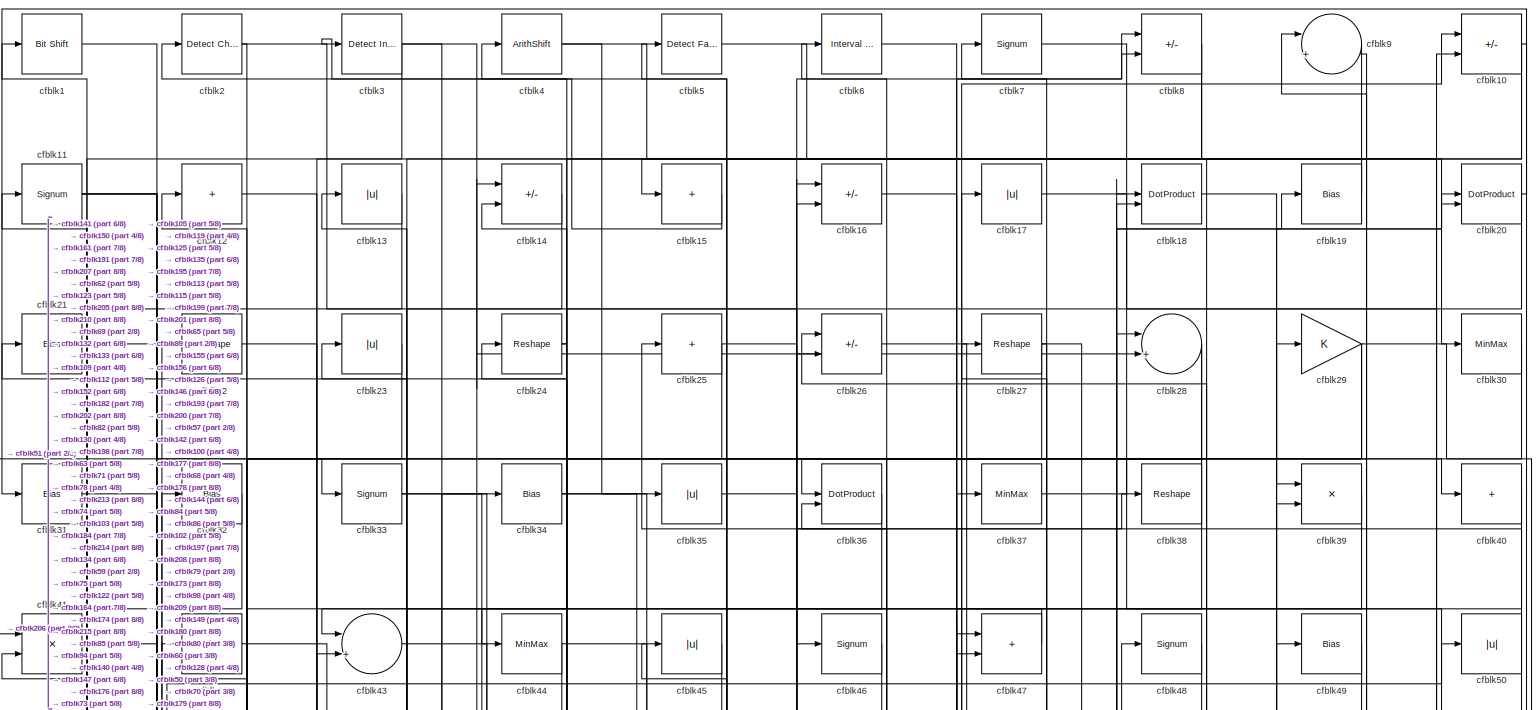
[diagram: root canvas - part 1/8, full width, top band]
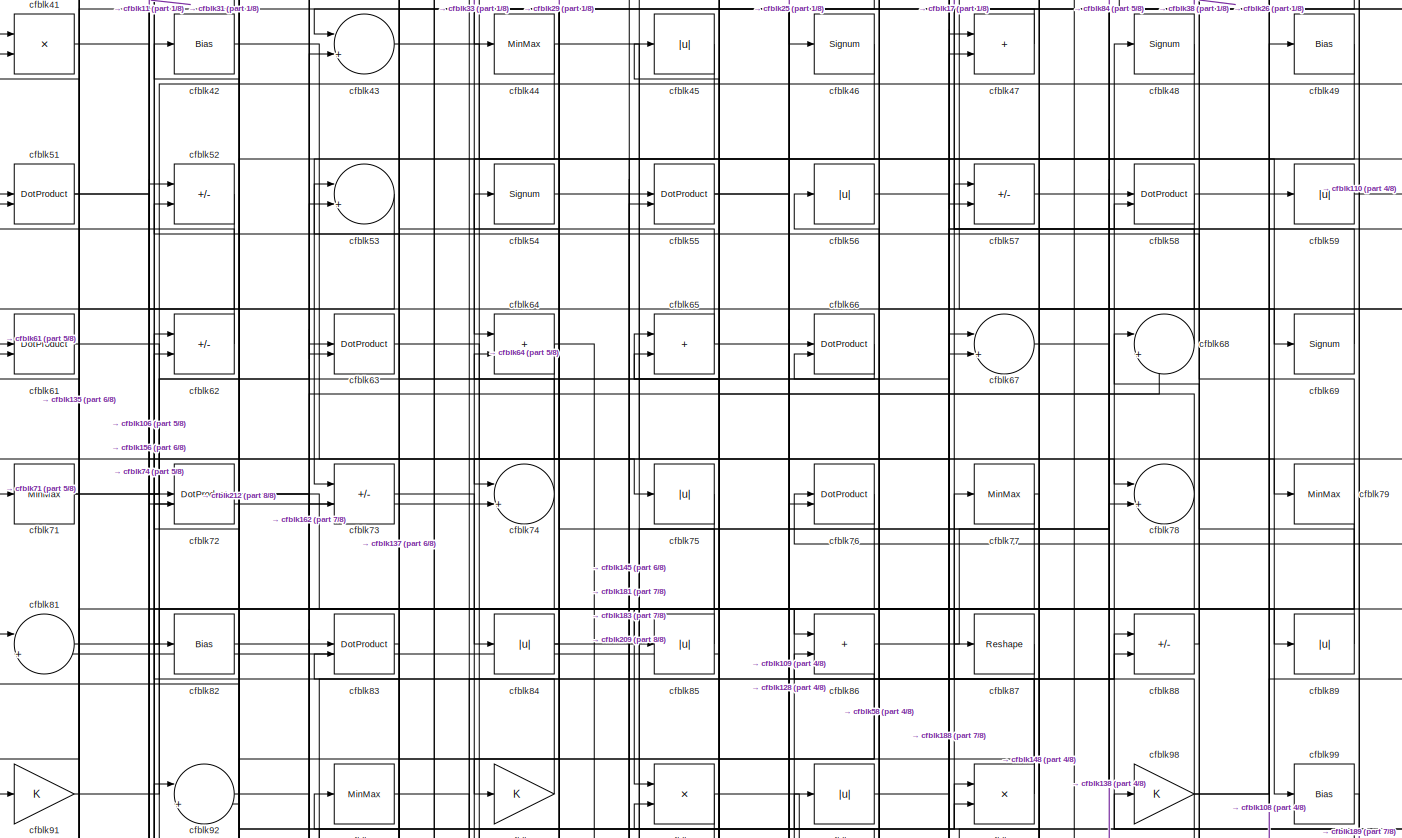
[diagram: root canvas - part 2/8, full width, top band]
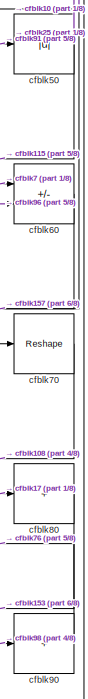
[diagram: root canvas - part 3/8, top right region]
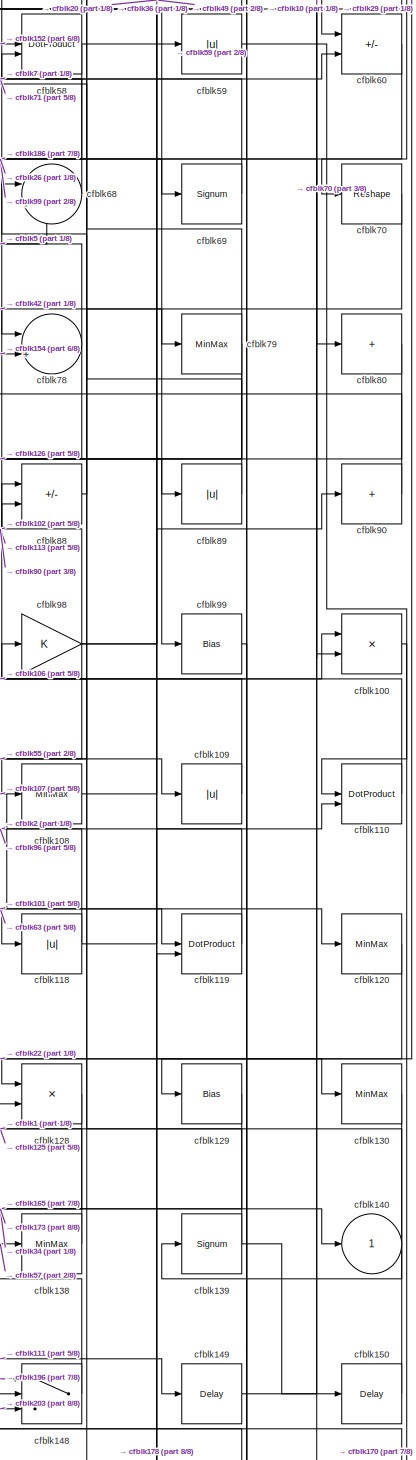
[diagram: root canvas - part 4/8, middle right region]
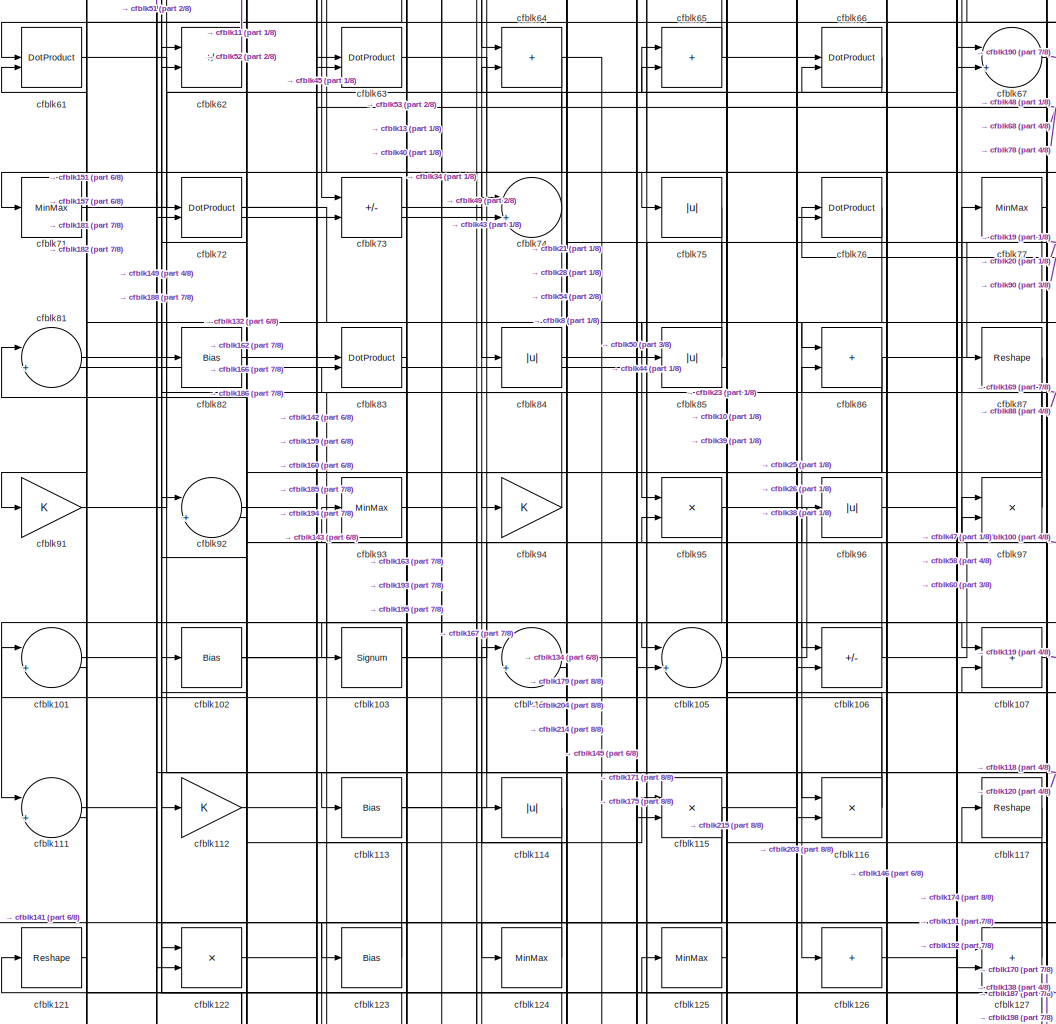
[diagram: root canvas - part 5/8, central region]
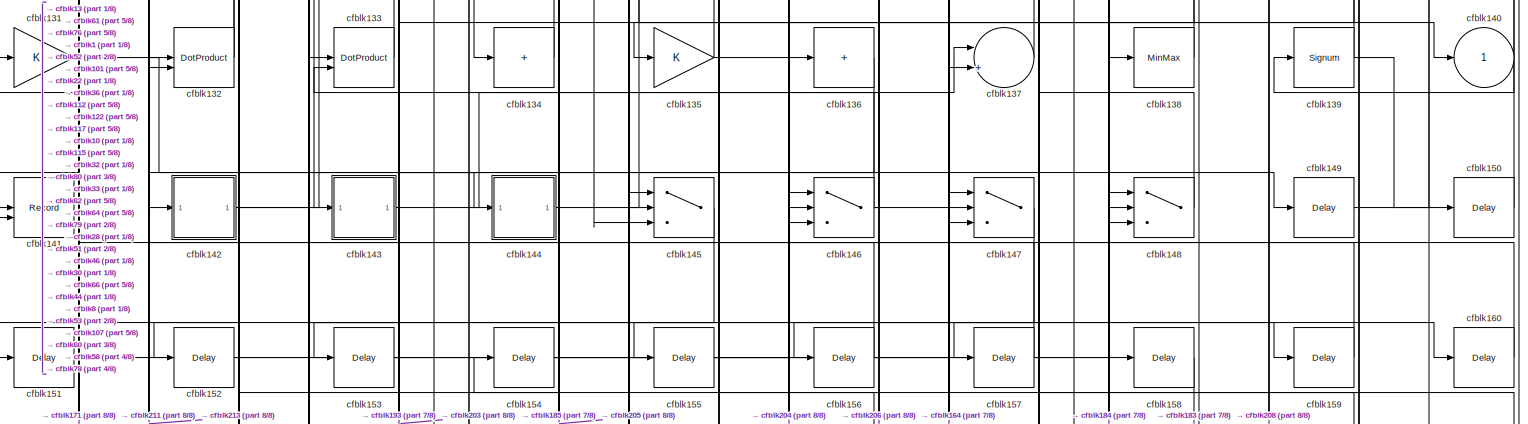
[diagram: root canvas - part 6/8, full width, middle band]
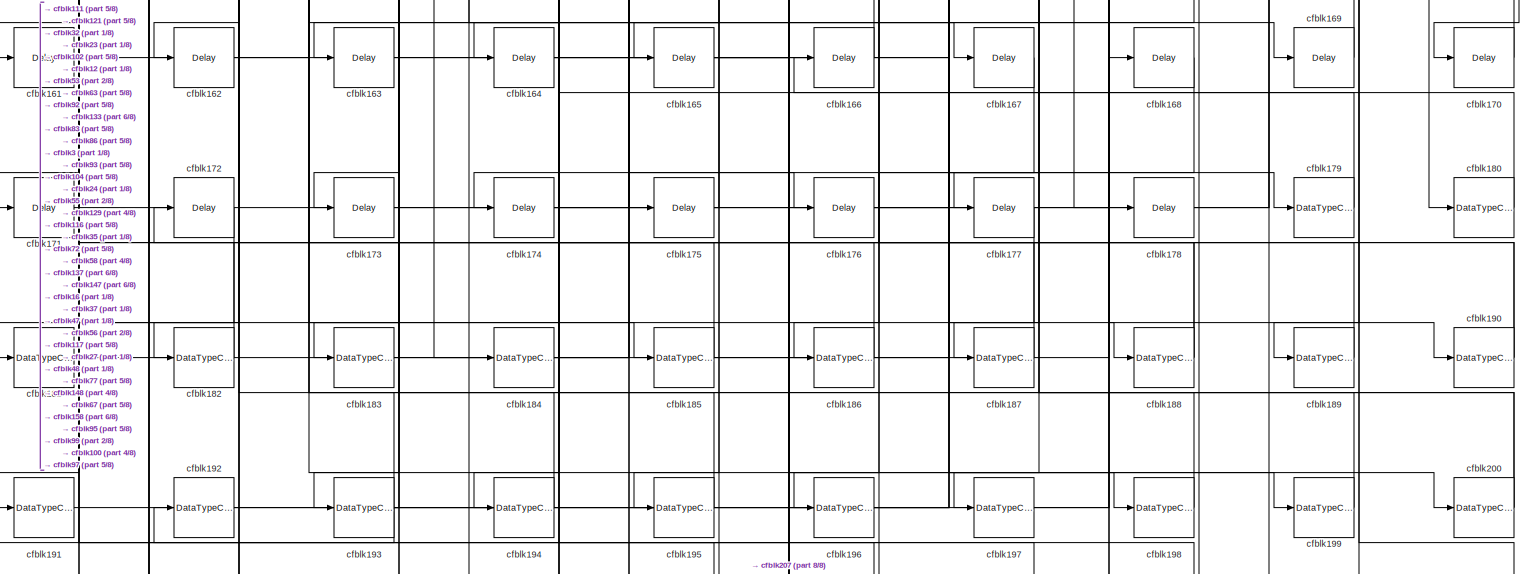
[diagram: root canvas - part 7/8, full width, bottom band]
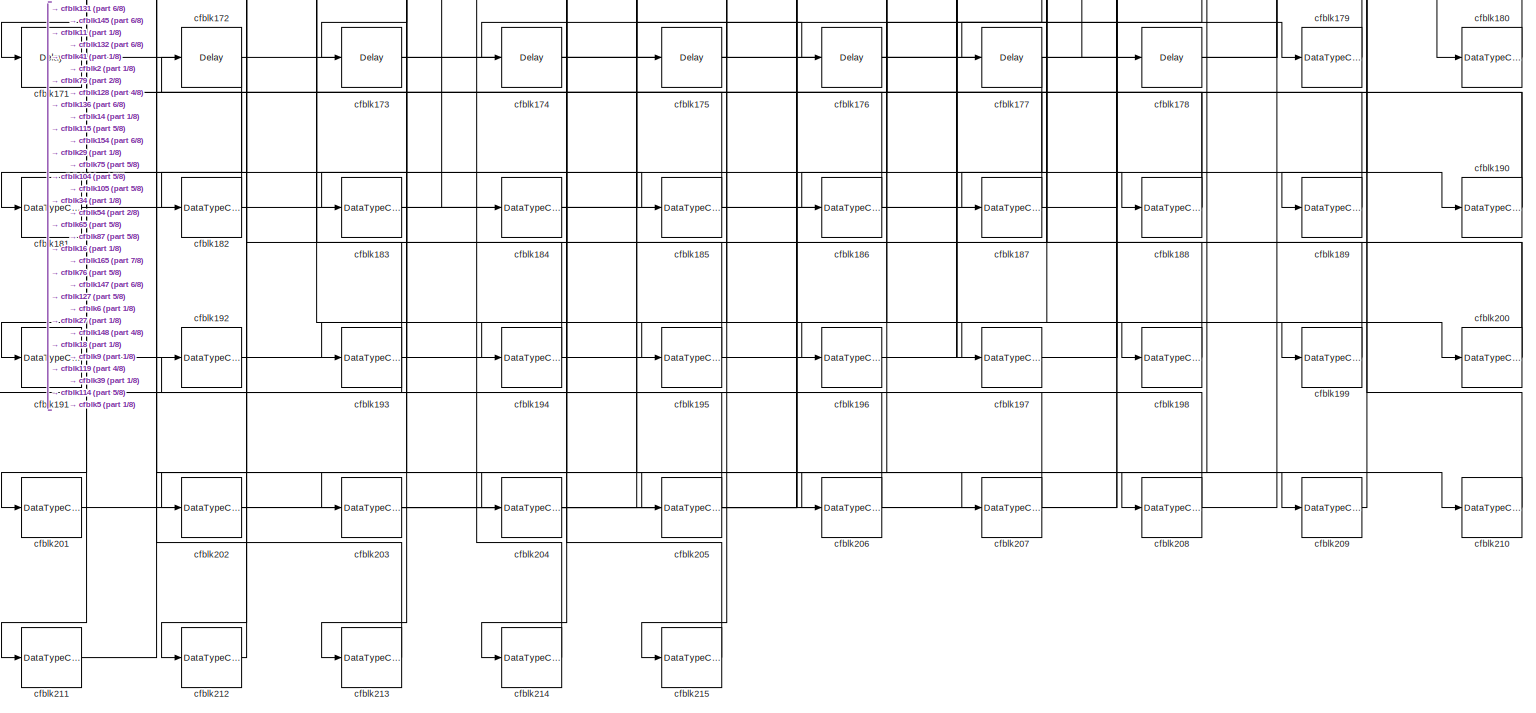
[diagram: root canvas - part 8/8, full width, bottom band]
MODEL slx_1e82339c82a2
KIND model
CONFIG AbsTol = auto
CONFIG EnableMultiTasking = off
CONFIG FixedStep = auto
CONFIG MaxStep = auto
CONFIG MinStep = auto
CONFIG RelTol = 1e-3
CONFIG SampleTimeConstraint = Unconstrained
CONFIG SolverName = VariableStepAuto
CONFIG StartTime = 0.0
CONFIG StopTime = 10.0
BLOCK [Reference] cfblk1  REF=hdlsllib/Logic and Bit
Operations/Bit Shift
  SourceBlock = hdlsllib/Logic and Bit\nOperations/Bit Shift
  SourceType = Bit Shift
BLOCK [Sum] cfblk10
  IconShape = rectangular
  Inputs = +-
BLOCK [Product] cfblk100
  Inputs = */
  RndMeth = Zero
  SaturateOnIntegerOverflow = on
BLOCK [Sum] cfblk101
  Inputs = |++
BLOCK [Bias] cfblk102
  Bias = 0.0
  SaturateOnIntegerOverflow = off
BLOCK [Signum] cfblk103
BLOCK [Sum] cfblk104
  Inputs = |++
BLOCK [Sum] cfblk105
  Inputs = |++
BLOCK [Sum] cfblk106
  IconShape = rectangular
  Inputs = +-
BLOCK [Sum] cfblk107
  IconShape = rectangular
BLOCK [MinMax] cfblk108
BLOCK [Abs] cfblk109
  SaturateOnIntegerOverflow = off
BLOCK [Signum] cfblk11
BLOCK [DotProduct] cfblk110
  OutDataTypeStr = Inherit: Inherit via internal rule
BLOCK [Sum] cfblk111
  Inputs = |++
BLOCK [Gain] cfblk112
BLOCK [Bias] cfblk113
  Bias = 0.0
  SaturateOnIntegerOverflow = off
BLOCK [Abs] cfblk114
  SaturateOnIntegerOverflow = off
BLOCK [Product] cfblk115
  Inputs = */
  RndMeth = Zero
  SaturateOnIntegerOverflow = on
BLOCK [Product] cfblk116
  Inputs = */
  RndMeth = Zero
  SaturateOnIntegerOverflow = on
BLOCK [Reshape] cfblk117
BLOCK [Abs] cfblk118
  SaturateOnIntegerOverflow = off
BLOCK [DotProduct] cfblk119
  OutDataTypeStr = Inherit: Inherit via internal rule
BLOCK [Sum] cfblk12
  IconShape = rectangular
  Inputs = +
BLOCK [MinMax] cfblk120
BLOCK [Reshape] cfblk121
BLOCK [Product] cfblk122
  Inputs = */
  RndMeth = Zero
  SaturateOnIntegerOverflow = on
BLOCK [Bias] cfblk123
  Bias = 0.0
  SaturateOnIntegerOverflow = off
BLOCK [MinMax] cfblk124
BLOCK [MinMax] cfblk125
BLOCK [Sum] cfblk126
  IconShape = rectangular
  Inputs = +
BLOCK [Sum] cfblk127
  IconShape = rectangular
BLOCK [Product] cfblk128
  Inputs = */
  RndMeth = Zero
  SaturateOnIntegerOverflow = on
BLOCK [Bias] cfblk129
  Bias = 0.0
  SaturateOnIntegerOverflow = off
BLOCK [Abs] cfblk13
  SaturateOnIntegerOverflow = off
BLOCK [MinMax] cfblk130
BLOCK [Gain] cfblk131
BLOCK [DotProduct] cfblk132
  OutDataTypeStr = Inherit: Inherit via internal rule
BLOCK [DotProduct] cfblk133
  OutDataTypeStr = Inherit: Inherit via internal rule
BLOCK [Sum] cfblk134
  IconShape = rectangular
  Inputs = +
BLOCK [Gain] cfblk135
BLOCK [Sum] cfblk136
  IconShape = rectangular
  Inputs = +
BLOCK [Sum] cfblk137
  Inputs = |++
BLOCK [MinMax] cfblk138
BLOCK [Signum] cfblk139
BLOCK [Sum] cfblk14
  IconShape = rectangular
  Inputs = +-
BLOCK [Outport] cfblk140
  VectorParamsAs1DForOutWhenUnconnected = off
BLOCK [Record] cfblk141
  CompatibilityTag = XY
  FileSettingsInternal = {"entries":[{"content":{"excelSettings":{"content":{},"type":"Streamout.ExcelSettings"}},"type":"Streamout.FileSettingStorage","uuid":""}],"packageUris":["http:\/\/schema.mathworks.com\/mf0\/streamout_blocks\/R2020a"],"version":"1.0"}
  Layout = [1 1]
  SignalsInternal = {"entries":[{"content":{"signals":[{"content":{"blockPath":[],"dimensions":[1],"domain":"","lineColor":"#a2142f","plots":[1],"port":1,"signalID":5141,"signalName":"XY Graph:1"},"type":"RecordBlkView.Signal","uuid":""},{"content":{"blockPath":[],"dimensions":[1],"domain":"","lineColor":"#139fff","plots":[1],"port":2,"signalID":5144,"signalName":"XY Graph:2"},"type":"RecordBlkView.Signal","uuid":""}...<+146ch>
  VisualizationBindings = {"xyplotplugin":{"info":[{"series":[{"bindingParametersList":[{"parameter":"X-Axis","signalID":5141,"signalName":"XY Graph:1"},{"parameter":"Y-Axis","signalID":5144,"signalName":"XY Graph:2"}],"seriesID":61603}],"subplotID":1}]}}
  st = -1
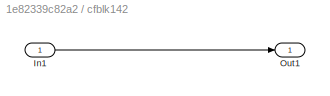
BLOCK [SubSystem] cfblk142
  LibrarySourceBlock = hdlsllib/Ports &\nSubsystems/Subsystem
BLOCK [Inport] cfblk142/In1
BLOCK [Outport] cfblk142/Out1
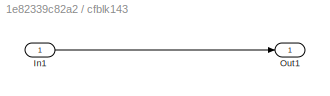
BLOCK [SubSystem] cfblk143
  LibrarySourceBlock = hdlsllib/Ports &\nSubsystems/Subsystem
BLOCK [Inport] cfblk143/In1
BLOCK [Outport] cfblk143/Out1
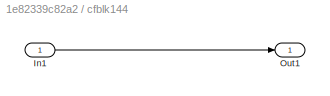
BLOCK [SubSystem] cfblk144
  LibrarySourceBlock = hdlsllib/Ports &\nSubsystems/Subsystem
BLOCK [Inport] cfblk144/In1
BLOCK [Outport] cfblk144/Out1
BLOCK [Switch] cfblk145
  InputSameDT = off
  SaturateOnIntegerOverflow = off
BLOCK [Switch] cfblk146
  InputSameDT = off
  SaturateOnIntegerOverflow = off
BLOCK [Switch] cfblk147
  InputSameDT = off
  SaturateOnIntegerOverflow = off
BLOCK [Switch] cfblk148
  InputSameDT = off
  SaturateOnIntegerOverflow = off
BLOCK [Delay] cfblk149
  InputPortMap = u0
  SampleTime = 1
BLOCK [Sum] cfblk15
  IconShape = rectangular
  Inputs = +
BLOCK [Delay] cfblk150
  InputPortMap = u0
  SampleTime = 1
BLOCK [Delay] cfblk151
  InputPortMap = u0
  SampleTime = 1
BLOCK [Delay] cfblk152
  InputPortMap = u0
  SampleTime = 1
BLOCK [Delay] cfblk153
  InputPortMap = u0
  SampleTime = 1
BLOCK [Delay] cfblk154
  InputPortMap = u0
  SampleTime = 1
BLOCK [Delay] cfblk155
  InputPortMap = u0
  SampleTime = 1
BLOCK [Delay] cfblk156
  InputPortMap = u0
  SampleTime = 1
BLOCK [Delay] cfblk157
  InputPortMap = u0
  SampleTime = 1
BLOCK [Delay] cfblk158
  InputPortMap = u0
  SampleTime = 1
BLOCK [Delay] cfblk159
  InputPortMap = u0
  SampleTime = 1
BLOCK [Sum] cfblk16
  IconShape = rectangular
  Inputs = +-
BLOCK [Delay] cfblk160
  InputPortMap = u0
  SampleTime = 1
BLOCK [Delay] cfblk161
  InputPortMap = u0
  SampleTime = 1
BLOCK [Delay] cfblk162
  InputPortMap = u0
  SampleTime = 1
BLOCK [Delay] cfblk163
  InputPortMap = u0
  SampleTime = 1
BLOCK [Delay] cfblk164
  InputPortMap = u0
  SampleTime = 1
BLOCK [Delay] cfblk165
  InputPortMap = u0
  SampleTime = 1
BLOCK [Delay] cfblk166
  InputPortMap = u0
  SampleTime = 1
BLOCK [Delay] cfblk167
  InputPortMap = u0
  SampleTime = 1
BLOCK [Delay] cfblk168
  InputPortMap = u0
  SampleTime = 1
BLOCK [Delay] cfblk169
  InputPortMap = u0
  SampleTime = 1
BLOCK [Abs] cfblk17
  SaturateOnIntegerOverflow = off
BLOCK [Delay] cfblk170
  InputPortMap = u0
  SampleTime = 1
BLOCK [Delay] cfblk171
  InputPortMap = u0
  SampleTime = 1
BLOCK [Delay] cfblk172
  InputPortMap = u0
  SampleTime = 1
BLOCK [Delay] cfblk173
  InputPortMap = u0
  SampleTime = 1
BLOCK [Delay] cfblk174
  InputPortMap = u0
  SampleTime = 1
BLOCK [Delay] cfblk175
  InputPortMap = u0
  SampleTime = 1
BLOCK [Delay] cfblk176
  InputPortMap = u0
  SampleTime = 1
BLOCK [Delay] cfblk177
  InputPortMap = u0
  SampleTime = 1
BLOCK [Delay] cfblk178
  InputPortMap = u0
  SampleTime = 1
BLOCK [DataTypeConversion] cfblk179
  OutDataTypeStr = uint8
  RndMeth = Floor
  SaturateOnIntegerOverflow = off
BLOCK [DotProduct] cfblk18
  OutDataTypeStr = Inherit: Inherit via internal rule
BLOCK [DataTypeConversion] cfblk180
  OutDataTypeStr = uint8
  RndMeth = Floor
  SaturateOnIntegerOverflow = off
BLOCK [DataTypeConversion] cfblk181
  OutDataTypeStr = uint8
  RndMeth = Floor
  SaturateOnIntegerOverflow = off
BLOCK [DataTypeConversion] cfblk182
  OutDataTypeStr = uint8
  RndMeth = Floor
  SaturateOnIntegerOverflow = off
BLOCK [DataTypeConversion] cfblk183
  OutDataTypeStr = uint8
  RndMeth = Floor
  SaturateOnIntegerOverflow = off
BLOCK [DataTypeConversion] cfblk184
  OutDataTypeStr = uint8
  RndMeth = Floor
  SaturateOnIntegerOverflow = off
BLOCK [DataTypeConversion] cfblk185
  RndMeth = Floor
  SaturateOnIntegerOverflow = off
BLOCK [DataTypeConversion] cfblk186
  OutDataTypeStr = uint8
  RndMeth = Floor
  SaturateOnIntegerOverflow = off
BLOCK [DataTypeConversion] cfblk187
  OutDataTypeStr = uint8
  RndMeth = Floor
  SaturateOnIntegerOverflow = off
BLOCK [DataTypeConversion] cfblk188
  RndMeth = Floor
  SaturateOnIntegerOverflow = off
BLOCK [DataTypeConversion] cfblk189
  OutDataTypeStr = uint8
  RndMeth = Floor
  SaturateOnIntegerOverflow = off
BLOCK [Bias] cfblk19
  Bias = 0.0
  SaturateOnIntegerOverflow = off
BLOCK [DataTypeConversion] cfblk190
  RndMeth = Floor
  SaturateOnIntegerOverflow = off
BLOCK [DataTypeConversion] cfblk191
  OutDataTypeStr = uint8
  RndMeth = Floor
  SaturateOnIntegerOverflow = off
BLOCK [DataTypeConversion] cfblk192
  OutDataTypeStr = uint8
  RndMeth = Floor
  SaturateOnIntegerOverflow = off
BLOCK [DataTypeConversion] cfblk193
  RndMeth = Floor
  SaturateOnIntegerOverflow = off
BLOCK [DataTypeConversion] cfblk194
  OutDataTypeStr = uint8
  RndMeth = Floor
  SaturateOnIntegerOverflow = off
BLOCK [DataTypeConversion] cfblk195
  OutDataTypeStr = uint8
  RndMeth = Floor
  SaturateOnIntegerOverflow = off
BLOCK [DataTypeConversion] cfblk196
  OutDataTypeStr = uint8
  RndMeth = Floor
  SaturateOnIntegerOverflow = off
BLOCK [DataTypeConversion] cfblk197
  OutDataTypeStr = uint8
  RndMeth = Floor
  SaturateOnIntegerOverflow = off
BLOCK [DataTypeConversion] cfblk198
  OutDataTypeStr = uint8
  RndMeth = Floor
  SaturateOnIntegerOverflow = off
BLOCK [DataTypeConversion] cfblk199
  OutDataTypeStr = uint8
  RndMeth = Floor
  SaturateOnIntegerOverflow = off
BLOCK [Reference] cfblk2  REF=simulink/Logic and Bit
Operations/Detect
Change
  LibrarySourceBlock = hdlsllib/Logic and Bit\nOperations/Detect\nChange
  SourceBlock = simulink/Logic and Bit\nOperations/Detect\nChange
  SourceType = Detect Change
BLOCK [DotProduct] cfblk20
  OutDataTypeStr = Inherit: Inherit via internal rule
BLOCK [DataTypeConversion] cfblk200
  RndMeth = Floor
  SaturateOnIntegerOverflow = off
BLOCK [DataTypeConversion] cfblk201
  OutDataTypeStr = uint8
  RndMeth = Floor
  SaturateOnIntegerOverflow = off
BLOCK [DataTypeConversion] cfblk202
  OutDataTypeStr = uint8
  RndMeth = Floor
  SaturateOnIntegerOverflow = off
BLOCK [DataTypeConversion] cfblk203
  RndMeth = Floor
  SaturateOnIntegerOverflow = off
BLOCK [DataTypeConversion] cfblk204
  OutDataTypeStr = uint8
  RndMeth = Floor
  SaturateOnIntegerOverflow = off
BLOCK [DataTypeConversion] cfblk205
  RndMeth = Floor
  SaturateOnIntegerOverflow = off
BLOCK [DataTypeConversion] cfblk206
  OutDataTypeStr = uint8
  RndMeth = Floor
  SaturateOnIntegerOverflow = off
BLOCK [DataTypeConversion] cfblk207
  OutDataTypeStr = uint8
  RndMeth = Floor
  SaturateOnIntegerOverflow = off
BLOCK [DataTypeConversion] cfblk208
  RndMeth = Floor
  SaturateOnIntegerOverflow = off
BLOCK [DataTypeConversion] cfblk209
  OutDataTypeStr = uint8
  RndMeth = Floor
  SaturateOnIntegerOverflow = off
BLOCK [Bias] cfblk21
  Bias = 0.0
  SaturateOnIntegerOverflow = off
BLOCK [DataTypeConversion] cfblk210
  OutDataTypeStr = uint8
  RndMeth = Floor
  SaturateOnIntegerOverflow = off
BLOCK [DataTypeConversion] cfblk211
  OutDataTypeStr = uint8
  RndMeth = Floor
  SaturateOnIntegerOverflow = off
BLOCK [DataTypeConversion] cfblk212
  OutDataTypeStr = uint8
  RndMeth = Floor
  SaturateOnIntegerOverflow = off
BLOCK [DataTypeConversion] cfblk213
  OutDataTypeStr = uint8
  RndMeth = Floor
  SaturateOnIntegerOverflow = off
BLOCK [DataTypeConversion] cfblk214
  OutDataTypeStr = uint8
  RndMeth = Floor
  SaturateOnIntegerOverflow = off
BLOCK [DataTypeConversion] cfblk215
  OutDataTypeStr = uint8
  RndMeth = Floor
  SaturateOnIntegerOverflow = off
BLOCK [Reshape] cfblk22
BLOCK [Abs] cfblk23
  SaturateOnIntegerOverflow = off
BLOCK [Reshape] cfblk24
BLOCK [Sum] cfblk25
  IconShape = rectangular
  Inputs = +
BLOCK [Sum] cfblk26
  IconShape = rectangular
  Inputs = +-
BLOCK [Reshape] cfblk27
BLOCK [Sum] cfblk28
  Inputs = |++
BLOCK [Gain] cfblk29
BLOCK [Reference] cfblk3  REF=simulink/Logic and Bit
Operations/Detect
Increase
  LibrarySourceBlock = hdlsllib/Logic and Bit\nOperations/Detect\nIncrease
  SourceBlock = simulink/Logic and Bit\nOperations/Detect\nIncrease
  SourceType = Detect Increase
BLOCK [MinMax] cfblk30
BLOCK [Bias] cfblk31
  Bias = 0.0
  SaturateOnIntegerOverflow = off
BLOCK [Bias] cfblk32
  Bias = 0.0
  SaturateOnIntegerOverflow = off
BLOCK [Signum] cfblk33
BLOCK [Bias] cfblk34
  Bias = 0.0
  SaturateOnIntegerOverflow = off
BLOCK [Abs] cfblk35
  SaturateOnIntegerOverflow = off
BLOCK [DotProduct] cfblk36
  OutDataTypeStr = Inherit: Inherit via internal rule
BLOCK [MinMax] cfblk37
BLOCK [Reshape] cfblk38
BLOCK [Product] cfblk39
  Inputs = */
  RndMeth = Zero
  SaturateOnIntegerOverflow = on
BLOCK [ArithShift] cfblk4
  BitShiftNumber = 8
  InputPortMap = u0
BLOCK [Sum] cfblk40
  IconShape = rectangular
  Inputs = +
BLOCK [Product] cfblk41
  Inputs = */
  RndMeth = Zero
  SaturateOnIntegerOverflow = on
BLOCK [Bias] cfblk42
  Bias = 0.0
  SaturateOnIntegerOverflow = off
BLOCK [Sum] cfblk43
  Inputs = |++
BLOCK [MinMax] cfblk44
BLOCK [Abs] cfblk45
  SaturateOnIntegerOverflow = off
BLOCK [Signum] cfblk46
BLOCK [Sum] cfblk47
  IconShape = rectangular
BLOCK [Signum] cfblk48
BLOCK [Bias] cfblk49
  Bias = 0.0
  SaturateOnIntegerOverflow = off
BLOCK [Reference] cfblk5  REF=hdlsllib/Logic and Bit
Operations/Detect Fall
Nonpositive
  SourceBlock = hdlsllib/Logic and Bit\nOperations/Detect Fall\nNonpositive
  SourceType = Detect Fall Nonpositive
BLOCK [Abs] cfblk50
  SaturateOnIntegerOverflow = off
BLOCK [DotProduct] cfblk51
  OutDataTypeStr = Inherit: Inherit via internal rule
BLOCK [Sum] cfblk52
  IconShape = rectangular
  Inputs = +-
BLOCK [Sum] cfblk53
  Inputs = |++
BLOCK [Signum] cfblk54
BLOCK [DotProduct] cfblk55
  OutDataTypeStr = Inherit: Inherit via internal rule
BLOCK [Abs] cfblk56
  SaturateOnIntegerOverflow = off
BLOCK [Sum] cfblk57
  IconShape = rectangular
  Inputs = +-
BLOCK [DotProduct] cfblk58
  OutDataTypeStr = Inherit: Inherit via internal rule
BLOCK [Abs] cfblk59
  SaturateOnIntegerOverflow = off
BLOCK [Reference] cfblk6  REF=hdlsllib/Logic and Bit
Operations/Interval Test
  SourceBlock = hdlsllib/Logic and Bit\nOperations/Interval Test
  SourceType = Interval Test
BLOCK [Sum] cfblk60
  IconShape = rectangular
  Inputs = +-
BLOCK [DotProduct] cfblk61
  OutDataTypeStr = Inherit: Inherit via internal rule
BLOCK [Sum] cfblk62
  IconShape = rectangular
  Inputs = +-
BLOCK [DotProduct] cfblk63
  OutDataTypeStr = Inherit: Inherit via internal rule
BLOCK [Sum] cfblk64
  IconShape = rectangular
BLOCK [Sum] cfblk65
  IconShape = rectangular
BLOCK [DotProduct] cfblk66
  OutDataTypeStr = Inherit: Inherit via internal rule
BLOCK [Sum] cfblk67
  Inputs = |++
BLOCK [Sum] cfblk68
  Inputs = |++
BLOCK [Signum] cfblk69
BLOCK [Signum] cfblk7
BLOCK [Reshape] cfblk70
BLOCK [MinMax] cfblk71
BLOCK [DotProduct] cfblk72
  OutDataTypeStr = Inherit: Inherit via internal rule
BLOCK [Sum] cfblk73
  IconShape = rectangular
  Inputs = +-
BLOCK [Sum] cfblk74
  Inputs = |++
BLOCK [Abs] cfblk75
  SaturateOnIntegerOverflow = off
BLOCK [DotProduct] cfblk76
  OutDataTypeStr = Inherit: Inherit via internal rule
BLOCK [MinMax] cfblk77
BLOCK [Sum] cfblk78
  Inputs = |++
BLOCK [MinMax] cfblk79
BLOCK [Sum] cfblk8
  IconShape = rectangular
  Inputs = +-
BLOCK [Sum] cfblk80
  IconShape = rectangular
  Inputs = +
BLOCK [Sum] cfblk81
  Inputs = |++
BLOCK [Bias] cfblk82
  Bias = 0.0
  SaturateOnIntegerOverflow = off
BLOCK [DotProduct] cfblk83
  OutDataTypeStr = Inherit: Inherit via internal rule
BLOCK [Abs] cfblk84
  SaturateOnIntegerOverflow = off
BLOCK [Abs] cfblk85
  SaturateOnIntegerOverflow = off
BLOCK [Sum] cfblk86
  IconShape = rectangular
BLOCK [Reshape] cfblk87
BLOCK [Sum] cfblk88
  IconShape = rectangular
  Inputs = +-
BLOCK [Abs] cfblk89
  SaturateOnIntegerOverflow = off
BLOCK [Sum] cfblk9
  Inputs = |++
BLOCK [Sum] cfblk90
  IconShape = rectangular
  Inputs = +
BLOCK [Gain] cfblk91
BLOCK [Sum] cfblk92
  Inputs = |++
BLOCK [MinMax] cfblk93
BLOCK [Gain] cfblk94
BLOCK [Product] cfblk95
  Inputs = */
  RndMeth = Zero
  SaturateOnIntegerOverflow = on
BLOCK [Abs] cfblk96
  SaturateOnIntegerOverflow = off
BLOCK [Product] cfblk97
  Inputs = */
  RndMeth = Zero
  SaturateOnIntegerOverflow = on
BLOCK [Gain] cfblk98
BLOCK [Bias] cfblk99
  Bias = 0.0
  SaturateOnIntegerOverflow = off
LINE cfblk100:1 -> cfblk170:1
LINE cfblk101:1 -> cfblk118:1
NET cfblk102:1 -> cfblk169:1, cfblk48:1, cfblk68:2
NET cfblk103:1 -> cfblk34:1, cfblk97:1
LINE cfblk104:1 -> cfblk175:1
LINE cfblk105:1 -> cfblk107:1
NET cfblk106:1 -> cfblk100:1, cfblk81:1
LINE cfblk107:1 -> cfblk119:1
LINE cfblk108:1 -> cfblk49:1
LINE cfblk109:1 -> cfblk42:1
NET cfblk10:1 -> cfblk113:1, cfblk135:1, cfblk70:1
LINE cfblk110:1 -> cfblk88:1
LINE cfblk111:1 -> cfblk149:1
LINE cfblk112:1 -> cfblk159:1
NET cfblk113:1 -> cfblk26:2, cfblk88:2
LINE cfblk114:1 -> cfblk124:1
NET cfblk115:1 -> cfblk141:2, cfblk204:1, cfblk8:1
NET cfblk116:1 -> cfblk101:1, cfblk81:2
LINE cfblk117:1 -> cfblk143:1
NET cfblk118:1 -> cfblk110:2, cfblk96:1
LINE cfblk119:1 -> cfblk2:1
NET cfblk11:1 -> cfblk123:1, cfblk210:1, cfblk79:1
LINE cfblk120:1 -> cfblk129:1
LINE cfblk121:1 -> cfblk181:1
LINE cfblk122:1 -> cfblk160:1
LINE cfblk123:1 -> cfblk102:1
LINE cfblk124:1 -> cfblk104:1
LINE cfblk125:1 -> cfblk45:1
LINE cfblk126:1 -> cfblk47:1
LINE cfblk127:1 -> cfblk65:1
LINE cfblk128:1 -> cfblk173:1
LINE cfblk129:1 -> cfblk165:1
LINE cfblk12:1 -> cfblk198:1
LINE cfblk130:1 -> cfblk139:1
LINE cfblk131:1 -> cfblk144:1
NET cfblk132:1 -> cfblk101:2, cfblk22:1
LINE cfblk133:1 -> cfblk32:1
LINE cfblk134:1 -> cfblk62:1
NET cfblk135:1 -> cfblk146:3, cfblk51:1
LINE cfblk136:1 -> cfblk203:1
LINE cfblk137:1 -> cfblk53:1
LINE cfblk138:1 -> cfblk125:1
NET cfblk139:1 -> cfblk150:1, cfblk98:1
LINE cfblk13:1 -> cfblk141:1
LINE cfblk142/In1:1 -> cfblk142/Out1:1
NET cfblk142:1 -> cfblk10:1, cfblk115:1
LINE cfblk143/In1:1 -> cfblk143/Out1:1
LINE cfblk143:1 -> cfblk137:1
LINE cfblk144/In1:1 -> cfblk144/Out1:1
LINE cfblk144:1 -> cfblk28:1
LINE cfblk145:1 -> cfblk171:1
NET cfblk146:1 -> cfblk133:2, cfblk66:2, cfblk8:2
LINE cfblk147:1 -> cfblk206:1
LINE cfblk148:1 -> cfblk57:1
LINE cfblk149:1 -> cfblk10:2
LINE cfblk14:1 -> cfblk213:1
LINE cfblk150:1 -> cfblk1:1
LINE cfblk151:1 -> cfblk66:1
LINE cfblk152:1 -> cfblk58:1
LINE cfblk153:1 -> cfblk146:2
LINE cfblk154:1 -> cfblk78:2
LINE cfblk155:1 -> cfblk147:1
LINE cfblk156:1 -> cfblk52:1
LINE cfblk157:1 -> cfblk61:2
LINE cfblk158:1 -> cfblk183:1
LINE cfblk159:1 -> cfblk107:2
LINE cfblk15:1 -> cfblk3:1
LINE cfblk160:1 -> cfblk146:1
LINE cfblk161:1 -> cfblk47:2
LINE cfblk162:1 -> cfblk53:2
LINE cfblk163:1 -> cfblk116:2
LINE cfblk164:1 -> cfblk147:3
LINE cfblk165:1 -> cfblk207:1
LINE cfblk166:1 -> cfblk72:2
LINE cfblk167:1 -> cfblk194:1
LINE cfblk168:1 -> cfblk196:1
LINE cfblk169:1 -> cfblk95:2
LINE cfblk16:1 -> cfblk200:1
LINE cfblk170:1 -> cfblk97:2
LINE cfblk171:1 -> cfblk105:2
LINE cfblk172:1 -> cfblk211:1
LINE cfblk173:1 -> cfblk39:2
LINE cfblk174:1 -> cfblk127:2
LINE cfblk175:1 -> cfblk65:2
LINE cfblk176:1 -> cfblk18:2
LINE cfblk177:1 -> cfblk201:1
LINE cfblk178:1 -> cfblk119:2
LINE cfblk179:1 -> cfblk114:1
LINE cfblk17:1 -> cfblk80:1
LINE cfblk180:1 -> cfblk6:1
LINE cfblk181:1 -> cfblk55:1
LINE cfblk182:1 -> cfblk121:1
LINE cfblk183:1 -> cfblk55:2
LINE cfblk184:1 -> cfblk158:1
NET cfblk185:1 -> cfblk104:2, cfblk137:2
LINE cfblk186:1 -> cfblk92:1
LINE cfblk187:1 -> cfblk92:2
NET cfblk188:1 -> cfblk111:2, cfblk72:1
LINE cfblk189:1 -> cfblk56:1
LINE cfblk18:1 -> cfblk39:1
NET cfblk190:1 -> cfblk166:1, cfblk63:1
LINE cfblk191:1 -> cfblk67:1
LINE cfblk192:1 -> cfblk67:2
NET cfblk193:1 -> cfblk133:1, cfblk192:1, cfblk37:1, cfblk93:1
LINE cfblk194:1 -> cfblk83:1
LINE cfblk195:1 -> cfblk83:2
LINE cfblk196:1 -> cfblk148:1
LINE cfblk197:1 -> cfblk168:1
LINE cfblk198:1 -> cfblk117:1
LINE cfblk199:1 -> cfblk12:1
LINE cfblk19:1 -> cfblk15:1
LINE cfblk1:1 -> cfblk142:1
NET cfblk200:1 -> cfblk24:1, cfblk27:1
LINE cfblk201:1 -> cfblk16:1
LINE cfblk202:1 -> cfblk16:2
NET cfblk203:1 -> cfblk145:1, cfblk148:3, cfblk76:2
LINE cfblk204:1 -> cfblk136:1
NET cfblk205:1 -> cfblk154:1, cfblk18:1
LINE cfblk206:1 -> cfblk41:1
LINE cfblk207:1 -> cfblk41:2
NET cfblk208:1 -> cfblk131:1, cfblk29:1
LINE cfblk209:1 -> cfblk9:1
NET cfblk20:1 -> cfblk31:1, cfblk44:1
LINE cfblk210:1 -> cfblk9:2
LINE cfblk211:1 -> cfblk132:2
LINE cfblk212:1 -> cfblk172:1
LINE cfblk213:1 -> cfblk132:1
LINE cfblk214:1 -> cfblk14:1
LINE cfblk215:1 -> cfblk14:2
LINE cfblk21:1 -> cfblk33:1
LINE cfblk22:1 -> cfblk130:1
LINE cfblk23:1 -> cfblk182:1
NET cfblk24:1 -> cfblk164:1, cfblk4:1
NET cfblk25:1 -> cfblk82:1, cfblk89:1
LINE cfblk26:1 -> cfblk100:2
NET cfblk27:1 -> cfblk177:1, cfblk178:1, cfblk195:1
NET cfblk28:1 -> cfblk112:1, cfblk74:1
NET cfblk29:1 -> cfblk128:1, cfblk174:1, cfblk51:2
NET cfblk2:1 -> cfblk202:1, cfblk46:1
LINE cfblk30:1 -> cfblk156:1
LINE cfblk31:1 -> cfblk69:1
LINE cfblk32:1 -> cfblk191:1
NET cfblk33:1 -> cfblk134:1, cfblk59:1
NET cfblk34:1 -> cfblk140:1, cfblk176:1
LINE cfblk35:1 -> cfblk199:1
LINE cfblk36:1 -> cfblk152:1
LINE cfblk37:1 -> cfblk40:1
NET cfblk38:1 -> cfblk36:1, cfblk57:2
LINE cfblk39:1 -> cfblk105:1
NET cfblk3:1 -> cfblk161:1, cfblk184:1, cfblk28:2
LINE cfblk40:1 -> cfblk103:1
LINE cfblk41:1 -> cfblk205:1
LINE cfblk42:1 -> cfblk78:1
LINE cfblk43:1 -> cfblk75:1
NET cfblk44:1 -> cfblk122:1, cfblk147:2
LINE cfblk45:1 -> cfblk73:1
LINE cfblk46:1 -> cfblk155:1
LINE cfblk47:1 -> cfblk43:1
LINE cfblk48:1 -> cfblk197:1
LINE cfblk49:1 -> cfblk64:1
NET cfblk4:1 -> cfblk30:1, cfblk35:1
NET cfblk50:1 -> cfblk115:2, cfblk25:1
NET cfblk51:1 -> cfblk106:1, cfblk74:2
LINE cfblk52:1 -> cfblk71:1
LINE cfblk53:1 -> cfblk61:1
LINE cfblk54:1 -> cfblk209:1
NET cfblk55:1 -> cfblk109:1, cfblk128:2
LINE cfblk56:1 -> cfblk188:1
LINE cfblk57:1 -> cfblk138:1
NET cfblk58:1 -> cfblk186:1, cfblk99:1
LINE cfblk59:1 -> cfblk110:1
LINE cfblk5:1 -> cfblk180:1
LINE cfblk60:1 -> cfblk157:1
LINE cfblk61:1 -> cfblk116:1
LINE cfblk62:1 -> cfblk11:1
LINE cfblk63:1 -> cfblk120:1
NET cfblk64:1 -> cfblk145:3, cfblk91:1
NET cfblk65:1 -> cfblk23:1, cfblk38:1
LINE cfblk66:1 -> cfblk64:2
LINE cfblk67:1 -> cfblk190:1
LINE cfblk68:1 -> cfblk7:1
LINE cfblk69:1 -> cfblk17:1
LINE cfblk6:1 -> cfblk179:1
LINE cfblk70:1 -> cfblk108:1
NET cfblk71:1 -> cfblk43:2, cfblk58:2
NET cfblk72:1 -> cfblk106:2, cfblk87:1, cfblk95:1
LINE cfblk73:1 -> cfblk84:1
NET cfblk74:1 -> cfblk122:2, cfblk13:1
LINE cfblk75:1 -> cfblk214:1
LINE cfblk76:1 -> cfblk151:1
NET cfblk77:1 -> cfblk187:1, cfblk85:1
NET cfblk78:1 -> cfblk126:1, cfblk5:1
NET cfblk79:1 -> cfblk145:2, cfblk212:1, cfblk26:1
LINE cfblk7:1 -> cfblk60:1
LINE cfblk80:1 -> cfblk153:1
LINE cfblk81:1 -> cfblk86:1
LINE cfblk82:1 -> cfblk73:2
LINE cfblk83:1 -> cfblk193:1
NET cfblk84:1 -> cfblk20:1, cfblk54:1
LINE cfblk85:1 -> cfblk21:1
NET cfblk86:1 -> cfblk162:1, cfblk163:1, cfblk19:1
LINE cfblk87:1 -> cfblk215:1
LINE cfblk88:1 -> cfblk68:1
LINE cfblk89:1 -> cfblk52:2
NET cfblk8:1 -> cfblk63:2, cfblk94:1
LINE cfblk90:1 -> cfblk76:1
LINE cfblk91:1 -> cfblk50:1
LINE cfblk92:1 -> cfblk185:1
LINE cfblk93:1 -> cfblk167:1
LINE cfblk94:1 -> cfblk62:2
NET cfblk95:1 -> cfblk111:1, cfblk127:1
LINE cfblk96:1 -> cfblk60:2
NET cfblk97:1 -> cfblk77:1, cfblk86:2
NET cfblk98:1 -> cfblk148:2, cfblk20:2, cfblk36:2, cfblk90:1
LINE cfblk99:1 -> cfblk189:1
LINE cfblk9:1 -> cfblk208:1
note: NET lines group one-source signal fan-out (src -> all destinations, sorted); 1:1 wires keep LINE
